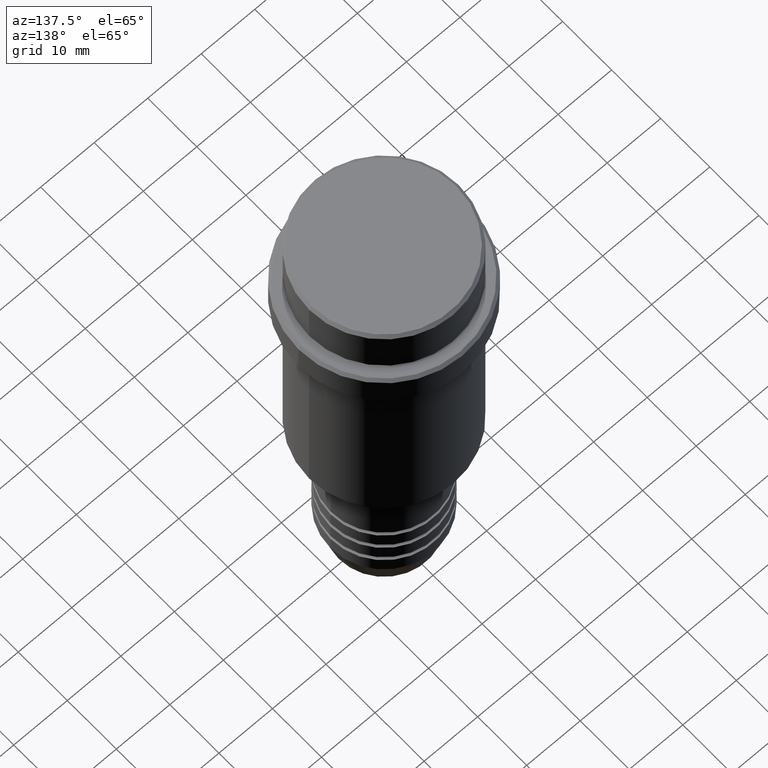
[diagram: clean part render]
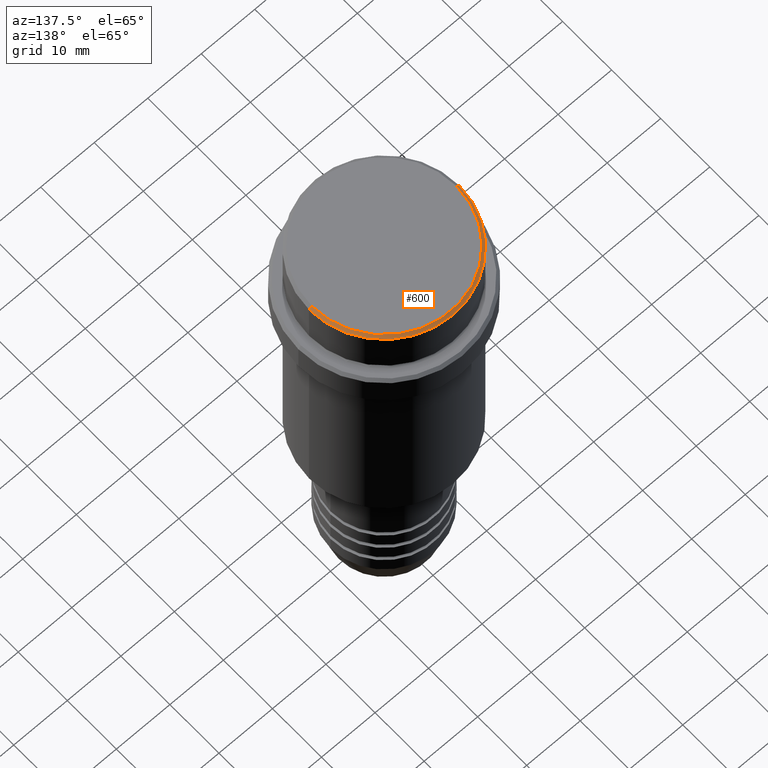
[diagram: same view with one face highlighted and labeled with its STEP entity id]
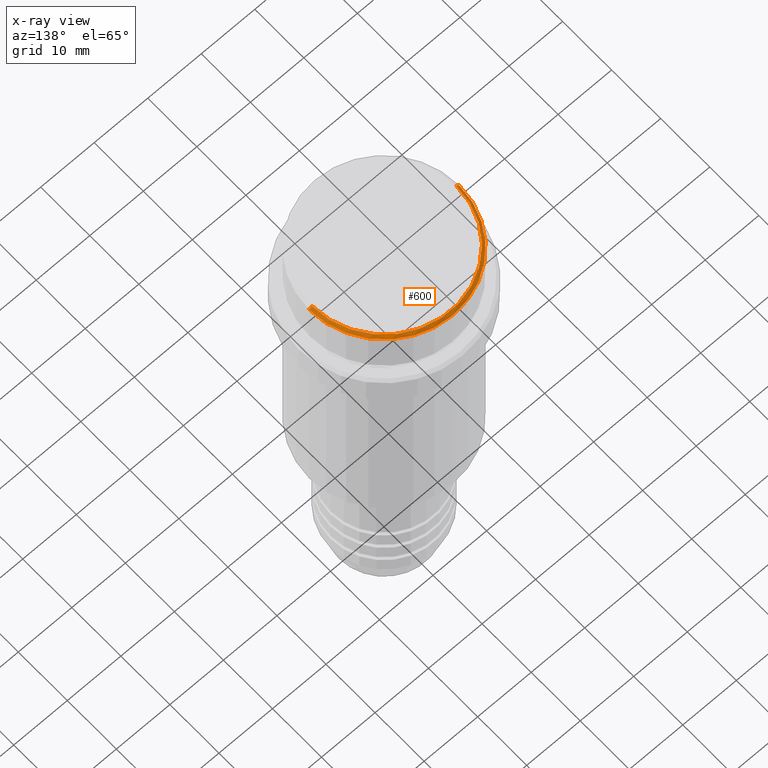
[diagram: x-ray of the same camera — body ghosted, the highlighted face saturated]
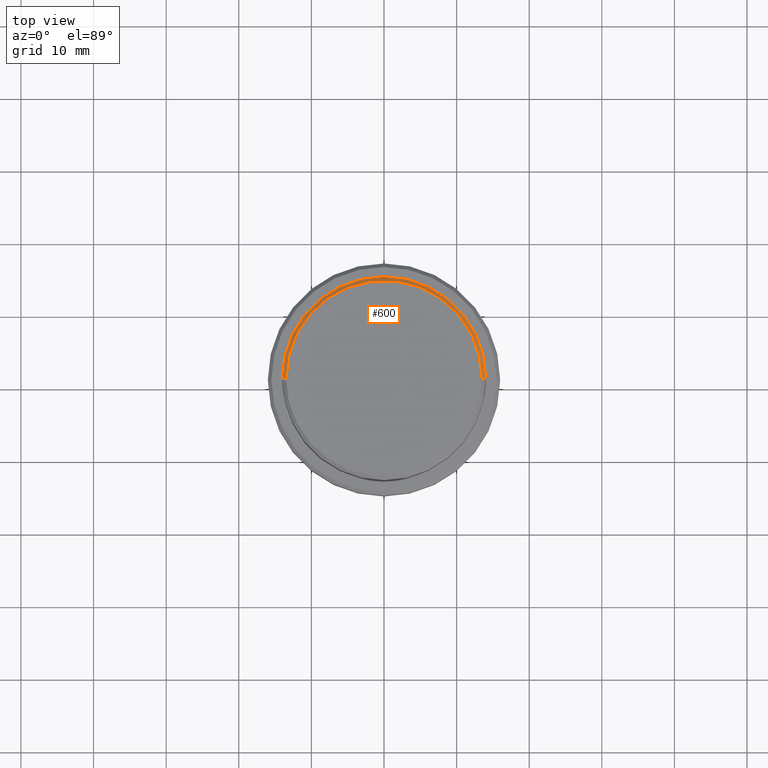
[diagram: same view with one face highlighted and labeled with its STEP entity id]
A machine part, auxiliary view. The second image highlights one B-rep face of the part: STEP entity #600.
The next image is the same camera in x-ray: the body ghosted, the highlighted face saturated — about 0% of this face is hidden behind the body in this view.
A second angle (top view) of the same face is appended — the face is thin or edge-on in the first view.
In plain terms, the highlighted conical surface has half-angle 45 deg.
Its self-contained STEP definition (entity closure, byte-faithful):
#3 = DIRECTION ( 'NONE',  ( 1.000000000000000000, 0.000000000000000000, 0.000000000000000000 ) ) ;
#10 = DIRECTION ( 'NONE',  ( 0.000000000000000000, 0.000000000000000000, -1.000000000000000000 ) ) ;
#44 = CARTESIAN_POINT ( 'NONE',  ( -13.99999999999999822, 1.714505518806294441E-15, -0.5000000000000073275 ) ) ;
#47 = EDGE_CURVE ( 'NONE', #1313, #193, #1245, .T. ) ;
#76 = VECTOR ( 'NONE', #1219, 1000.000000000000000 ) ;
#84 = DIRECTION ( 'NONE',  ( -1.000000000000000000, 0.000000000000000000, 0.000000000000000000 ) ) ;
#193 = VERTEX_POINT ( 'NONE', #1135 ) ;
#242 = VECTOR ( 'NONE', #291, 1000.000000000000000 ) ;
#263 = CARTESIAN_POINT ( 'NONE',  ( 13.49999999999999822, 1.683889348827610456E-15, 0.000000000000000000 ) ) ;
#291 = DIRECTION ( 'NONE',  ( -0.7071067811865426878, 0.000000000000000000, -0.7071067811865524577 ) ) ;
#358 = AXIS2_PLACEMENT_3D ( 'NONE', #1049, #820, #632 ) ;
#362 = ORIENTED_EDGE ( 'NONE', *, *, #1114, .F. ) ;
#545 = AXIS2_PLACEMENT_3D ( 'NONE', #1278, #10, #3 ) ;
#600 = ADVANCED_FACE ( 'NONE', ( #861 ), #1149, .T. ) ;
#632 = DIRECTION ( 'NONE',  ( 1.000000000000000000, 0.000000000000000000, 0.000000000000000000 ) ) ;
#640 = EDGE_CURVE ( 'NONE', #1313, #1068, #1264, .T. ) ;
#654 = CARTESIAN_POINT ( 'NONE',  ( -13.49999999999999822, 0.000000000000000000, 0.000000000000000000 ) ) ;
#752 = CARTESIAN_POINT ( 'NONE',  ( 0.000000000000000000, 0.000000000000000000, 0.000000000000000000 ) ) ;
#768 = VERTEX_POINT ( 'NONE', #44 ) ;
#774 = CARTESIAN_POINT ( 'NONE',  ( 13.49999999999999822, 1.653273178848926669E-15, 0.000000000000000000 ) ) ;
#820 = DIRECTION ( 'NONE',  ( -0.000000000000000000, -0.000000000000000000, 1.000000000000000000 ) ) ;
#846 = EDGE_LOOP ( 'NONE', ( #888, #869, #1053, #362 ) ) ;
#861 = FACE_OUTER_BOUND ( 'NONE', #846, .T. ) ;
#869 = ORIENTED_EDGE ( 'NONE', *, *, #47, .T. ) ;
#888 = ORIENTED_EDGE ( 'NONE', *, *, #640, .F. ) ;
#950 = LINE ( 'NONE', #1177, #242 ) ;
#1049 = CARTESIAN_POINT ( 'NONE',  ( 0.000000000000000000, 0.000000000000000000, 0.000000000000000000 ) ) ;
#1053 = ORIENTED_EDGE ( 'NONE', *, *, #1143, .F. ) ;
#1068 = VERTEX_POINT ( 'NONE', #654 ) ;
#1087 = DIRECTION ( 'NONE',  ( 0.000000000000000000, 0.000000000000000000, -1.000000000000000000 ) ) ;
#1114 = EDGE_CURVE ( 'NONE', #1068, #768, #950, .T. ) ;
#1135 = CARTESIAN_POINT ( 'NONE',  ( 13.99999999999999822, 0.000000000000000000, -0.5000000000000073275 ) ) ;
#1143 = EDGE_CURVE ( 'NONE', #768, #193, #1290, .T. ) ;
#1149 = CONICAL_SURFACE ( 'NONE', #1368, 13.49999999999999822, 0.7853981633974415066 ) ;
#1177 = CARTESIAN_POINT ( 'NONE',  ( -13.49999999999999822, 0.000000000000000000, 0.000000000000000000 ) ) ;
#1219 = DIRECTION ( 'NONE',  ( 0.7071067811865426878, 8.659560562354874926E-17, -0.7071067811865524577 ) ) ;
#1245 = LINE ( 'NONE', #774, #76 ) ;
#1264 = CIRCLE ( 'NONE', #358, 13.49999999999999822 ) ;
#1278 = CARTESIAN_POINT ( 'NONE',  ( 0.000000000000000000, 0.000000000000000000, -0.5000000000000073275 ) ) ;
#1290 = CIRCLE ( 'NONE', #545, 13.99999999999999822 ) ;
#1313 = VERTEX_POINT ( 'NONE', #263 ) ;
#1368 = AXIS2_PLACEMENT_3D ( 'NONE', #752, #1087, #84 ) ;